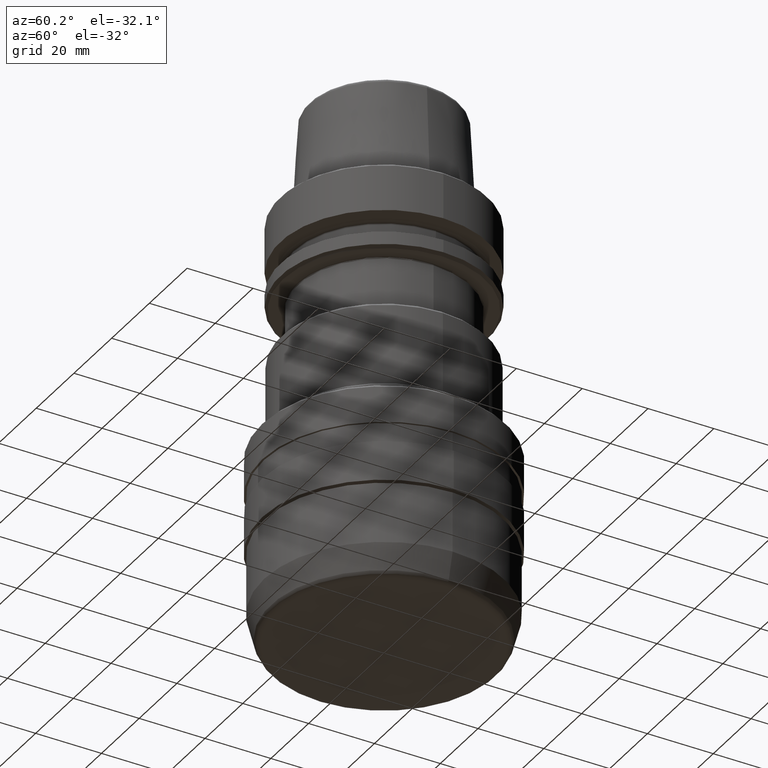
[diagram: clean part render]
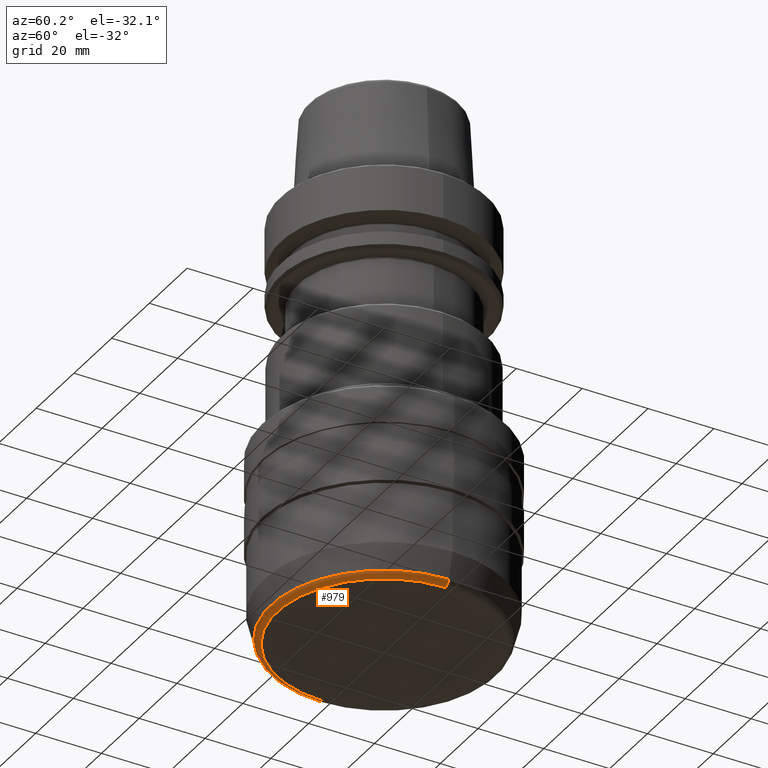
[diagram: same view with one face highlighted and labeled with its STEP entity id]
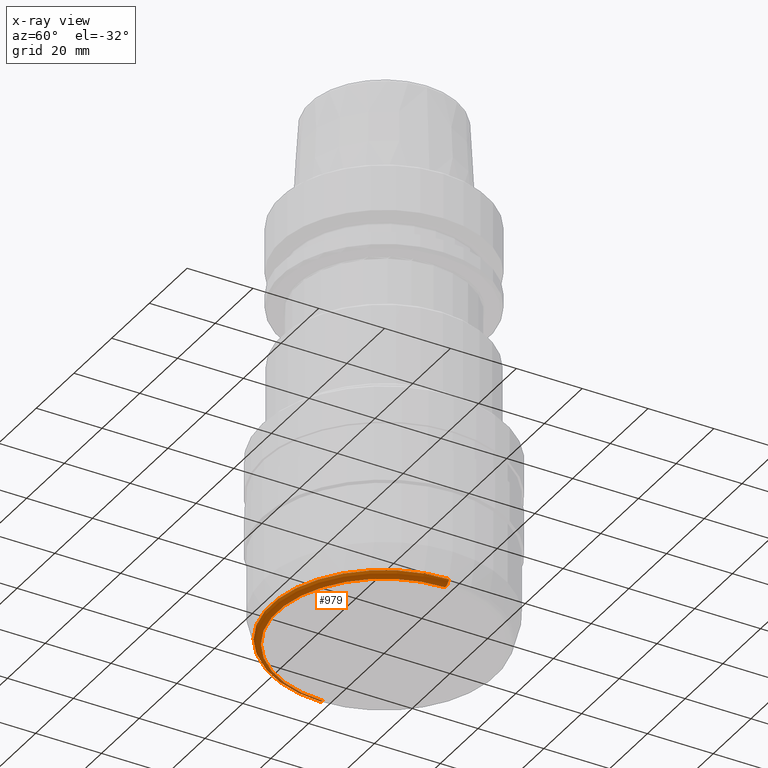
[diagram: x-ray of the same camera — body ghosted, the highlighted face saturated]
A machine part, auxiliary view. The second image highlights one B-rep face of the part: STEP entity #979.
The next image is the same camera in x-ray: the body ghosted, the highlighted face saturated — about 0% of this face is hidden behind the body in this view.
In plain terms, the highlighted toroidal blend (fillet) surface has major radius 32.4538 mm and minor (blend) radius 2 mm.
Its self-contained STEP definition (entity closure, byte-faithful):
#38 = CARTESIAN_POINT ( 'NONE',  ( 0.0000000000000000000, 0.0000000000000000000, -127.9987247428984700 ) ) ;
#115 = EDGE_CURVE ( 'NONE', #2095, #581, #1737, .T. ) ;
#139 = AXIS2_PLACEMENT_3D ( 'NONE', #2038, #1453, #740 ) ;
#163 = CARTESIAN_POINT ( 'NONE',  ( 32.45380329216240500, 0.0000000000000000000, -127.9987247428984700 ) ) ;
#172 = DIRECTION ( 'NONE',  ( 1.000000000000000000, 0.0000000000000000000, 0.0000000000000000000 ) ) ;
#253 = FACE_OUTER_BOUND ( 'NONE', #514, .T. ) ;
#341 = DIRECTION ( 'NONE',  ( 0.0000000000000000000, -1.000000000000000000, 0.0000000000000000000 ) ) ;
#394 = CARTESIAN_POINT ( 'NONE',  ( -32.45380329216240500, 3.974444632190452900E-015, -127.9987247428984700 ) ) ;
#514 = EDGE_LOOP ( 'NONE', ( #913, #2064, #1937, #958 ) ) ;
#534 = AXIS2_PLACEMENT_3D ( 'NONE', #760, #750, #797 ) ;
#581 = VERTEX_POINT ( 'NONE', #2026 ) ;
#584 = DIRECTION ( 'NONE',  ( 1.224646799147353200E-016, 1.000000000000000000, 0.0000000000000000000 ) ) ;
#664 = TOROIDAL_SURFACE ( 'NONE', #733, 32.45380329216240500, 1.999999999999446200 ) ;
#665 = VERTEX_POINT ( 'NONE', #1136 ) ;
#733 = AXIS2_PLACEMENT_3D ( 'NONE', #38, #1727, #172 ) ;
#740 = DIRECTION ( 'NONE',  ( 1.000000000000000000, 0.0000000000000000000, 0.0000000000000000000 ) ) ;
#750 = DIRECTION ( 'NONE',  ( -0.0000000000000000000, -0.0000000000000000000, 1.000000000000000000 ) ) ;
#760 = CARTESIAN_POINT ( 'NONE',  ( 0.0000000000000000000, 0.0000000000000000000, -128.5163628331034700 ) ) ;
#797 = DIRECTION ( 'NONE',  ( 1.000000000000000000, 0.0000000000000000000, 0.0000000000000000000 ) ) ;
#799 = CARTESIAN_POINT ( 'NONE',  ( -32.45380329216218500, 4.092736429328274900E-015, -129.9987247428973700 ) ) ;
#862 = EDGE_CURVE ( 'NONE', #2095, #1611, #2066, .T. ) ;
#913 = ORIENTED_EDGE ( 'NONE', *, *, #862, .F. ) ;
#958 = ORIENTED_EDGE ( 'NONE', *, *, #1585, .F. ) ;
#979 = ADVANCED_FACE ( 'NONE', ( #253 ), #664, .T. ) ;
#1136 = CARTESIAN_POINT ( 'NONE',  ( 34.38565494474027400, 0.0000000000000000000, -128.5163628331034700 ) ) ;
#1153 = EDGE_CURVE ( 'NONE', #581, #665, #1168, .T. ) ;
#1168 = CIRCLE ( 'NONE', #2036, 1.999999999999446700 ) ;
#1192 = CARTESIAN_POINT ( 'NONE',  ( -34.38565494474027400, 4.211028226466153600E-015, -128.5163628331034700 ) ) ;
#1324 = DIRECTION ( 'NONE',  ( 0.0000000000000000000, 0.0000000000000000000, -1.000000000000000000 ) ) ;
#1453 = DIRECTION ( 'NONE',  ( -0.0000000000000000000, -0.0000000000000000000, 1.000000000000000000 ) ) ;
#1585 = EDGE_CURVE ( 'NONE', #1611, #665, #1728, .T. ) ;
#1611 = VERTEX_POINT ( 'NONE', #1192 ) ;
#1643 = AXIS2_PLACEMENT_3D ( 'NONE', #394, #584, #1808 ) ;
#1727 = DIRECTION ( 'NONE',  ( -0.0000000000000000000, -0.0000000000000000000, 1.000000000000000000 ) ) ;
#1728 = CIRCLE ( 'NONE', #534, 34.38565494474055800 ) ;
#1737 = CIRCLE ( 'NONE', #139, 32.45380329216218500 ) ;
#1808 = DIRECTION ( 'NONE',  ( -1.000000000000000000, 1.224646799147354200E-016, 0.0000000000000000000 ) ) ;
#1937 = ORIENTED_EDGE ( 'NONE', *, *, #1153, .T. ) ;
#2026 = CARTESIAN_POINT ( 'NONE',  ( 32.45380329216218500, 0.0000000000000000000, -129.9987247428973700 ) ) ;
#2036 = AXIS2_PLACEMENT_3D ( 'NONE', #163, #341, #1324 ) ;
#2038 = CARTESIAN_POINT ( 'NONE',  ( 0.0000000000000000000, 0.0000000000000000000, -129.9987247428973700 ) ) ;
#2064 = ORIENTED_EDGE ( 'NONE', *, *, #115, .T. ) ;
#2066 = CIRCLE ( 'NONE', #1643, 1.999999999999446700 ) ;
#2095 = VERTEX_POINT ( 'NONE', #799 ) ;